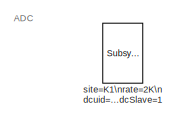
[diagram: root canvas - part 1/4, top center region]
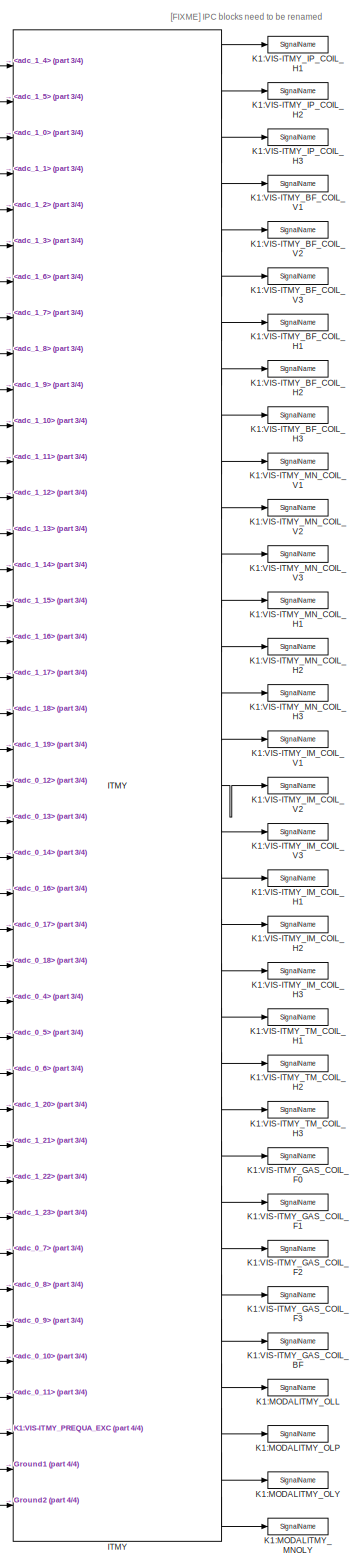
[diagram: root canvas - part 2/4, right side, full height]
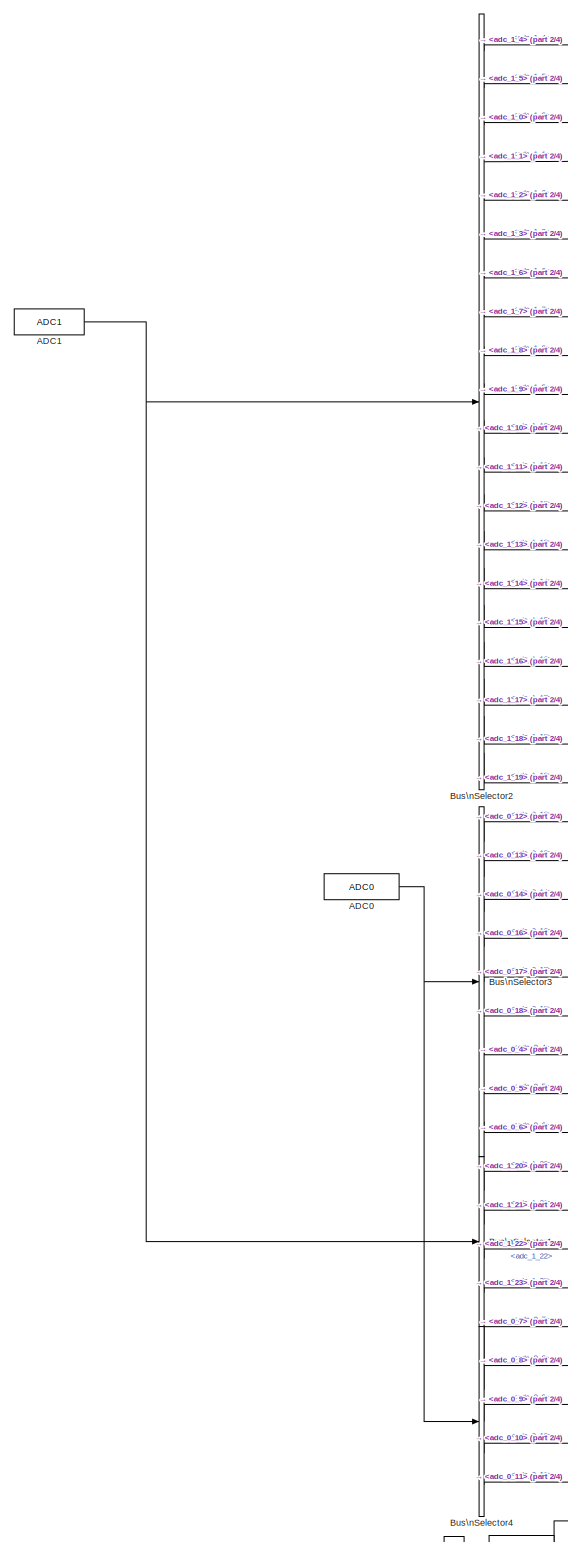
[diagram: root canvas - part 3/4, left side, full height]
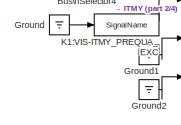
[diagram: root canvas - part 4/4, bottom center region]
MODEL k1modalitmy
KIND model
BLOCK [Reference] ADC0  REF=cdsAdcx0/ADC0
  AttributesFormatString = %<Description>\\n%<Tag>
  Description = type-GSC_16AI64SSA\ncard_num=0
  Ports = [0, 1]
  SID = 2539
  SourceBlock = cdsAdcx0/ADC0
  SourceType = SubSystem
  Tag = cdsAdc
BLOCK [Reference] ADC1  REF=cdsAdcx1/ADC1
  AttributesFormatString = %<Description>\\n%<Tag>
  Description = type-GSC_16AI64SSA\ncard_num=1
  Ports = [0, 1]
  SID = 2540
  SourceBlock = cdsAdcx1/ADC1
  SourceType = SubSystem
  Tag = cdsAdc
BLOCK [BusSelector] Bus\nSelector1
  OutputSignals = adc_1_20,adc_1_21,adc_1_22,adc_1_23
  Ports = [1, 4]
  SID = 3762
BLOCK [BusSelector] Bus\nSelector2
  OutputSignals = adc_1_4,adc_1_5,adc_1_0,adc_1_1,adc_1_2,adc_1_3,adc_1_6,adc_1_7,adc_1_8,adc_1_9,adc_1_10,adc_1_11,adc_1_12,adc_1_13,adc_1_14,adc_1_15,adc_1_16,adc_1_17,adc_1_18,adc_1_19
  Ports = [1, 20]
  SID = 2543
BLOCK [BusSelector] Bus\nSelector3
  OutputSignals = adc_0_12,adc_0_13,adc_0_14,adc_0_16,adc_0_17,adc_0_18,adc_0_4,adc_0_5,adc_0_6
  Ports = [1, 9]
  SID = 2544
BLOCK [BusSelector] Bus\nSelector4
  OutputSignals = adc_0_7,adc_0_8,adc_0_9,adc_0_10,adc_0_11
  Ports = [1, 5]
  SID = 5547
BLOCK [Ground] Ground
  SID = 5735
BLOCK [Ground] Ground1
  SID = 5743
BLOCK [Ground] Ground2
  SID = 5744
BLOCK [Reference] ITMY  REF=VISMODAL_MASTER/ITMY
  Ports = [41, 33]
  SID = 5742
  SourceBlock = VISMODAL_MASTER/ITMY
  SourceType = SubSystem
BLOCK [Reference] K1:MODALITMY_MNOLY  REF=cdsIPCx/SignalName
  AttributesFormatString = %<Tag>
  Description = Inter-Process Communication via Shared memory.
  Ports = [1, 2]
  SID = 5748
  SourceBlock = cdsIPCx/SignalName
  SourceType = SubSystem
  Tag = cdsIPCx_SHMEM
BLOCK [Reference] K1:MODALITMY_OLL  REF=cdsIPCx/SignalName
  AttributesFormatString = %<Tag>
  Description = Inter-Process Communication via Shared memory.
  Ports = [1, 2]
  SID = 5745
  SourceBlock = cdsIPCx/SignalName
  SourceType = SubSystem
  Tag = cdsIPCx_SHMEM
BLOCK [Reference] K1:MODALITMY_OLP  REF=cdsIPCx/SignalName
  AttributesFormatString = %<Tag>
  Description = Inter-Process Communication via Shared memory.
  Ports = [1, 2]
  SID = 5746
  SourceBlock = cdsIPCx/SignalName
  SourceType = SubSystem
  Tag = cdsIPCx_SHMEM
BLOCK [Reference] K1:MODALITMY_OLY  REF=cdsIPCx/SignalName
  AttributesFormatString = %<Tag>
  Description = Inter-Process Communication via Shared memory.
  Ports = [1, 2]
  SID = 5747
  SourceBlock = cdsIPCx/SignalName
  SourceType = SubSystem
  Tag = cdsIPCx_SHMEM
BLOCK [Reference] K1:VIS-ITMY_BF_COIL_H1  REF=cdsIPCx/SignalName
  AttributesFormatString = %<Tag>
  Description = Inter-Process Communication via Shared memory.
  Ports = [1, 2]
  SID = 2334
  SourceBlock = cdsIPCx/SignalName
  SourceType = SubSystem
  Tag = cdsIPCx_SHMEM
BLOCK [Reference] K1:VIS-ITMY_BF_COIL_H2  REF=cdsIPCx/SignalName
  AttributesFormatString = %<Tag>
  Description = Inter-Process Communication via Shared memory.
  Ports = [1, 2]
  SID = 2335
  SourceBlock = cdsIPCx/SignalName
  SourceType = SubSystem
  Tag = cdsIPCx_SHMEM
BLOCK [Reference] K1:VIS-ITMY_BF_COIL_H3  REF=cdsIPCx/SignalName
  AttributesFormatString = %<Tag>
  Description = Inter-Process Communication via Shared memory.
  Ports = [1, 2]
  SID = 2336
  SourceBlock = cdsIPCx/SignalName
  SourceType = SubSystem
  Tag = cdsIPCx_SHMEM
BLOCK [Reference] K1:VIS-ITMY_BF_COIL_V1  REF=cdsIPCx/SignalName
  AttributesFormatString = %<Tag>
  Description = Inter-Process Communication via Shared memory.
  Ports = [1, 2]
  SID = 2337
  SourceBlock = cdsIPCx/SignalName
  SourceType = SubSystem
  Tag = cdsIPCx_SHMEM
BLOCK [Reference] K1:VIS-ITMY_BF_COIL_V2  REF=cdsIPCx/SignalName
  AttributesFormatString = %<Tag>
  Description = Inter-Process Communication via Shared memory.
  Ports = [1, 2]
  SID = 2338
  SourceBlock = cdsIPCx/SignalName
  SourceType = SubSystem
  Tag = cdsIPCx_SHMEM
BLOCK [Reference] K1:VIS-ITMY_BF_COIL_V3  REF=cdsIPCx/SignalName
  AttributesFormatString = %<Tag>
  Description = Inter-Process Communication via Shared memory.
  Ports = [1, 2]
  SID = 2339
  SourceBlock = cdsIPCx/SignalName
  SourceType = SubSystem
  Tag = cdsIPCx_SHMEM
BLOCK [Reference] K1:VIS-ITMY_GAS_COIL_BF  REF=cdsIPCx/SignalName
  AttributesFormatString = %<Tag>
  Description = Inter-Process Communication via Shared memory.
  Ports = [1, 2]
  SID = 5546
  SourceBlock = cdsIPCx/SignalName
  SourceType = SubSystem
  Tag = cdsIPCx_SHMEM
BLOCK [Reference] K1:VIS-ITMY_GAS_COIL_F0  REF=cdsIPCx/SignalName
  AttributesFormatString = %<Tag>
  Description = Inter-Process Communication via Shared memory.
  Ports = [1, 2]
  SID = 5540
  SourceBlock = cdsIPCx/SignalName
  SourceType = SubSystem
  Tag = cdsIPCx_SHMEM
BLOCK [Reference] K1:VIS-ITMY_GAS_COIL_F1  REF=cdsIPCx/SignalName
  AttributesFormatString = %<Tag>
  Description = Inter-Process Communication via Shared memory.
  Ports = [1, 2]
  SID = 5543
  SourceBlock = cdsIPCx/SignalName
  SourceType = SubSystem
  Tag = cdsIPCx_SHMEM
BLOCK [Reference] K1:VIS-ITMY_GAS_COIL_F2  REF=cdsIPCx/SignalName
  AttributesFormatString = %<Tag>
  Description = Inter-Process Communication via Shared memory.
  Ports = [1, 2]
  SID = 5544
  SourceBlock = cdsIPCx/SignalName
  SourceType = SubSystem
  Tag = cdsIPCx_SHMEM
BLOCK [Reference] K1:VIS-ITMY_GAS_COIL_F3  REF=cdsIPCx/SignalName
  AttributesFormatString = %<Tag>
  Description = Inter-Process Communication via Shared memory.
  Ports = [1, 2]
  SID = 5545
  SourceBlock = cdsIPCx/SignalName
  SourceType = SubSystem
  Tag = cdsIPCx_SHMEM
BLOCK [Reference] K1:VIS-ITMY_IM_COIL_H1  REF=cdsIPCx/SignalName
  AttributesFormatString = %<Tag>
  Description = Inter-Process Communication via Shared memory.
  Ports = [1, 2]
  SID = 2324
  SourceBlock = cdsIPCx/SignalName
  SourceType = SubSystem
  Tag = cdsIPCx_SHMEM
BLOCK [Reference] K1:VIS-ITMY_IM_COIL_H2  REF=cdsIPCx/SignalName
  AttributesFormatString = %<Tag>
  Description = Inter-Process Communication via Shared memory.
  Ports = [1, 2]
  SID = 2325
  SourceBlock = cdsIPCx/SignalName
  SourceType = SubSystem
  Tag = cdsIPCx_SHMEM
BLOCK [Reference] K1:VIS-ITMY_IM_COIL_H3  REF=cdsIPCx/SignalName
  AttributesFormatString = %<Tag>
  Description = Inter-Process Communication via Shared memory.
  Ports = [1, 2]
  SID = 2326
  SourceBlock = cdsIPCx/SignalName
  SourceType = SubSystem
  Tag = cdsIPCx_SHMEM
BLOCK [Reference] K1:VIS-ITMY_IM_COIL_V1  REF=cdsIPCx/SignalName
  AttributesFormatString = %<Tag>
  Description = Inter-Process Communication via Shared memory.
  Ports = [1, 2]
  SID = 2321
  SourceBlock = cdsIPCx/SignalName
  SourceType = SubSystem
  Tag = cdsIPCx_SHMEM
BLOCK [Reference] K1:VIS-ITMY_IM_COIL_V2  REF=cdsIPCx/SignalName
  AttributesFormatString = %<Tag>
  Description = Inter-Process Communication via Shared memory.
  Ports = [1, 2]
  SID = 2322
  SourceBlock = cdsIPCx/SignalName
  SourceType = SubSystem
  Tag = cdsIPCx_SHMEM
BLOCK [Reference] K1:VIS-ITMY_IM_COIL_V3  REF=cdsIPCx/SignalName
  AttributesFormatString = %<Tag>
  Description = Inter-Process Communication via Shared memory.
  Ports = [1, 2]
  SID = 2323
  SourceBlock = cdsIPCx/SignalName
  SourceType = SubSystem
  Tag = cdsIPCx_SHMEM
BLOCK [Reference] K1:VIS-ITMY_IP_COIL_H1  REF=cdsIPCx/SignalName
  AttributesFormatString = %<Tag>
  Description = Inter-Process Communication via Shared memory.
  Ports = [1, 2]
  SID = 2331
  SourceBlock = cdsIPCx/SignalName
  SourceType = SubSystem
  Tag = cdsIPCx_SHMEM
BLOCK [Reference] K1:VIS-ITMY_IP_COIL_H2  REF=cdsIPCx/SignalName
  AttributesFormatString = %<Tag>
  Description = Inter-Process Communication via Shared memory.
  Ports = [1, 2]
  SID = 2332
  SourceBlock = cdsIPCx/SignalName
  SourceType = SubSystem
  Tag = cdsIPCx_SHMEM
BLOCK [Reference] K1:VIS-ITMY_IP_COIL_H3  REF=cdsIPCx/SignalName
  AttributesFormatString = %<Tag>
  Description = Inter-Process Communication via Shared memory.
  Ports = [1, 2]
  SID = 2333
  SourceBlock = cdsIPCx/SignalName
  SourceType = SubSystem
  Tag = cdsIPCx_SHMEM
BLOCK [Reference] K1:VIS-ITMY_MN_COIL_H1  REF=cdsIPCx/SignalName
  AttributesFormatString = %<Tag>
  Description = Inter-Process Communication via Shared memory.
  Ports = [1, 2]
  SID = 2318
  SourceBlock = cdsIPCx/SignalName
  SourceType = SubSystem
  Tag = cdsIPCx_SHMEM
BLOCK [Reference] K1:VIS-ITMY_MN_COIL_H2  REF=cdsIPCx/SignalName
  AttributesFormatString = %<Tag>
  Description = Inter-Process Communication via Shared memory.
  Ports = [1, 2]
  SID = 2319
  SourceBlock = cdsIPCx/SignalName
  SourceType = SubSystem
  Tag = cdsIPCx_SHMEM
BLOCK [Reference] K1:VIS-ITMY_MN_COIL_H3  REF=cdsIPCx/SignalName
  AttributesFormatString = %<Tag>
  Description = Inter-Process Communication via Shared memory.
  Ports = [1, 2]
  SID = 2320
  SourceBlock = cdsIPCx/SignalName
  SourceType = SubSystem
  Tag = cdsIPCx_SHMEM
BLOCK [Reference] K1:VIS-ITMY_MN_COIL_V1  REF=cdsIPCx/SignalName
  AttributesFormatString = %<Tag>
  Description = Inter-Process Communication via Shared memory.
  Ports = [1, 2]
  SID = 566
  SourceBlock = cdsIPCx/SignalName
  SourceType = SubSystem
  Tag = cdsIPCx_SHMEM
BLOCK [Reference] K1:VIS-ITMY_MN_COIL_V2  REF=cdsIPCx/SignalName
  AttributesFormatString = %<Tag>
  Description = Inter-Process Communication via Shared memory.
  Ports = [1, 2]
  SID = 2316
  SourceBlock = cdsIPCx/SignalName
  SourceType = SubSystem
  Tag = cdsIPCx_SHMEM
BLOCK [Reference] K1:VIS-ITMY_MN_COIL_V3  REF=cdsIPCx/SignalName
  AttributesFormatString = %<Tag>
  Description = Inter-Process Communication via Shared memory.
  Ports = [1, 2]
  SID = 2317
  SourceBlock = cdsIPCx/SignalName
  SourceType = SubSystem
  Tag = cdsIPCx_SHMEM
BLOCK [Reference] K1:VIS-ITMY_PREQUA_EXC  REF=cdsIPCx/SignalName
  AttributesFormatString = %<Tag>
  Description = Inter-Process Communication via Shared memory.
  Ports = [1, 2]
  SID = 5734
  SourceBlock = cdsIPCx/SignalName
  SourceType = SubSystem
  Tag = cdsIPCx_SHMEM
BLOCK [Reference] K1:VIS-ITMY_TM_COIL_H1  REF=cdsIPCx/SignalName
  AttributesFormatString = %<Tag>
  Description = Inter-Process Communication via Shared memory.
  Ports = [1, 2]
  SID = 2327
  SourceBlock = cdsIPCx/SignalName
  SourceType = SubSystem
  Tag = cdsIPCx_SHMEM
BLOCK [Reference] K1:VIS-ITMY_TM_COIL_H2  REF=cdsIPCx/SignalName
  AttributesFormatString = %<Tag>
  Description = Inter-Process Communication via Shared memory.
  Ports = [1, 2]
  SID = 2328
  SourceBlock = cdsIPCx/SignalName
  SourceType = SubSystem
  Tag = cdsIPCx_SHMEM
BLOCK [Reference] K1:VIS-ITMY_TM_COIL_H3  REF=cdsIPCx/SignalName
  AttributesFormatString = %<Tag>
  Description = Inter-Process Communication via Shared memory.
  Ports = [1, 2]
  SID = 2329
  SourceBlock = cdsIPCx/SignalName
  SourceType = SubSystem
  Tag = cdsIPCx_SHMEM
BLOCK [Reference] site=K1\nrate=2K\ndcuid=100\nhost=k1iy1\nspecific_cpu=5\nadcSlave=1  REF=cdsParameters/Subsystem
  AttributesFormatString = %<Tag>
  Description = Purpose:                                                                                                                                                                                                                                \nProvide system parameters to the FE code generator to properly configure the generated EPICS names, rep rate of the FE controller, and the Data Acquisition node ID fo...<+2934ch>
  Ports = []
  SID = 3
  SourceBlock = cdsParameters/Subsystem
  SourceType = SubSystem
  Tag = cdsParameters
ANNOTATION (root): \n \n ADC
ANNOTATION (root): \n \n [FIXME] IPC blocks need to be renamed
NET ADC0:1 -> Bus\nSelector3:1, Bus\nSelector4:1
NET ADC1:1 -> Bus\nSelector1:1, Bus\nSelector2:1
LINE Bus\nSelector1:1 -> ITMY:30
LINE Bus\nSelector1:2 -> ITMY:31
LINE Bus\nSelector1:3 -> ITMY:32
LINE Bus\nSelector1:4 -> ITMY:33
LINE Bus\nSelector2:1 -> ITMY:1
LINE Bus\nSelector2:10 -> ITMY:10
LINE Bus\nSelector2:11 -> ITMY:11
LINE Bus\nSelector2:12 -> ITMY:12
LINE Bus\nSelector2:13 -> ITMY:13
LINE Bus\nSelector2:14 -> ITMY:14
LINE Bus\nSelector2:15 -> ITMY:15
LINE Bus\nSelector2:16 -> ITMY:16
LINE Bus\nSelector2:17 -> ITMY:17
LINE Bus\nSelector2:18 -> ITMY:18
LINE Bus\nSelector2:19 -> ITMY:19
LINE Bus\nSelector2:2 -> ITMY:2
LINE Bus\nSelector2:20 -> ITMY:20
LINE Bus\nSelector2:3 -> ITMY:3
LINE Bus\nSelector2:4 -> ITMY:4
LINE Bus\nSelector2:5 -> ITMY:5
LINE Bus\nSelector2:6 -> ITMY:6
LINE Bus\nSelector2:7 -> ITMY:7
LINE Bus\nSelector2:8 -> ITMY:8
LINE Bus\nSelector2:9 -> ITMY:9
LINE Bus\nSelector3:1 -> ITMY:21
LINE Bus\nSelector3:2 -> ITMY:22
LINE Bus\nSelector3:3 -> ITMY:23
LINE Bus\nSelector3:4 -> ITMY:24
LINE Bus\nSelector3:5 -> ITMY:25
LINE Bus\nSelector3:6 -> ITMY:26
LINE Bus\nSelector3:7 -> ITMY:27
LINE Bus\nSelector3:8 -> ITMY:28
LINE Bus\nSelector3:9 -> ITMY:29
LINE Bus\nSelector4:1 -> ITMY:34
LINE Bus\nSelector4:2 -> ITMY:35
LINE Bus\nSelector4:3 -> ITMY:36
LINE Bus\nSelector4:4 -> ITMY:37
LINE Bus\nSelector4:5 -> ITMY:38
LINE Ground1:1 -> ITMY:40
LINE Ground2:1 -> ITMY:41
LINE Ground:1 -> K1:VIS-ITMY_PREQUA_EXC:1
LINE ITMY:1 -> K1:VIS-ITMY_IP_COIL_H1:1
LINE ITMY:10 -> K1:VIS-ITMY_MN_COIL_V1:1
LINE ITMY:11 -> K1:VIS-ITMY_MN_COIL_V2:1
LINE ITMY:12 -> K1:VIS-ITMY_MN_COIL_V3:1
LINE ITMY:13 -> K1:VIS-ITMY_MN_COIL_H1:1
LINE ITMY:14 -> K1:VIS-ITMY_MN_COIL_H2:1
LINE ITMY:15 -> K1:VIS-ITMY_MN_COIL_H3:1
LINE ITMY:16 -> K1:VIS-ITMY_IM_COIL_V1:1
LINE ITMY:17 -> K1:VIS-ITMY_IM_COIL_V2:1
LINE ITMY:18 -> K1:VIS-ITMY_IM_COIL_V3:1
LINE ITMY:19 -> K1:VIS-ITMY_IM_COIL_H1:1
LINE ITMY:2 -> K1:VIS-ITMY_IP_COIL_H2:1
LINE ITMY:20 -> K1:VIS-ITMY_IM_COIL_H2:1
LINE ITMY:21 -> K1:VIS-ITMY_IM_COIL_H3:1
LINE ITMY:22 -> K1:VIS-ITMY_TM_COIL_H1:1
LINE ITMY:23 -> K1:VIS-ITMY_TM_COIL_H2:1
LINE ITMY:24 -> K1:VIS-ITMY_TM_COIL_H3:1
LINE ITMY:25 -> K1:VIS-ITMY_GAS_COIL_F0:1
LINE ITMY:26 -> K1:VIS-ITMY_GAS_COIL_F1:1
LINE ITMY:27 -> K1:VIS-ITMY_GAS_COIL_F2:1
LINE ITMY:28 -> K1:VIS-ITMY_GAS_COIL_F3:1
LINE ITMY:29 -> K1:VIS-ITMY_GAS_COIL_BF:1
LINE ITMY:3 -> K1:VIS-ITMY_IP_COIL_H3:1
LINE ITMY:30 -> K1:MODALITMY_OLL:1
LINE ITMY:31 -> K1:MODALITMY_OLP:1
LINE ITMY:32 -> K1:MODALITMY_OLY:1
LINE ITMY:33 -> K1:MODALITMY_MNOLY:1
LINE ITMY:4 -> K1:VIS-ITMY_BF_COIL_V1:1
LINE ITMY:5 -> K1:VIS-ITMY_BF_COIL_V2:1
LINE ITMY:6 -> K1:VIS-ITMY_BF_COIL_V3:1
LINE ITMY:7 -> K1:VIS-ITMY_BF_COIL_H1:1
LINE ITMY:8 -> K1:VIS-ITMY_BF_COIL_H2:1
LINE ITMY:9 -> K1:VIS-ITMY_BF_COIL_H3:1
LINE K1:VIS-ITMY_PREQUA_EXC:1 -> ITMY:39
note: NET lines group one-source signal fan-out (src -> all destinations, sorted); 1:1 wires keep LINE
